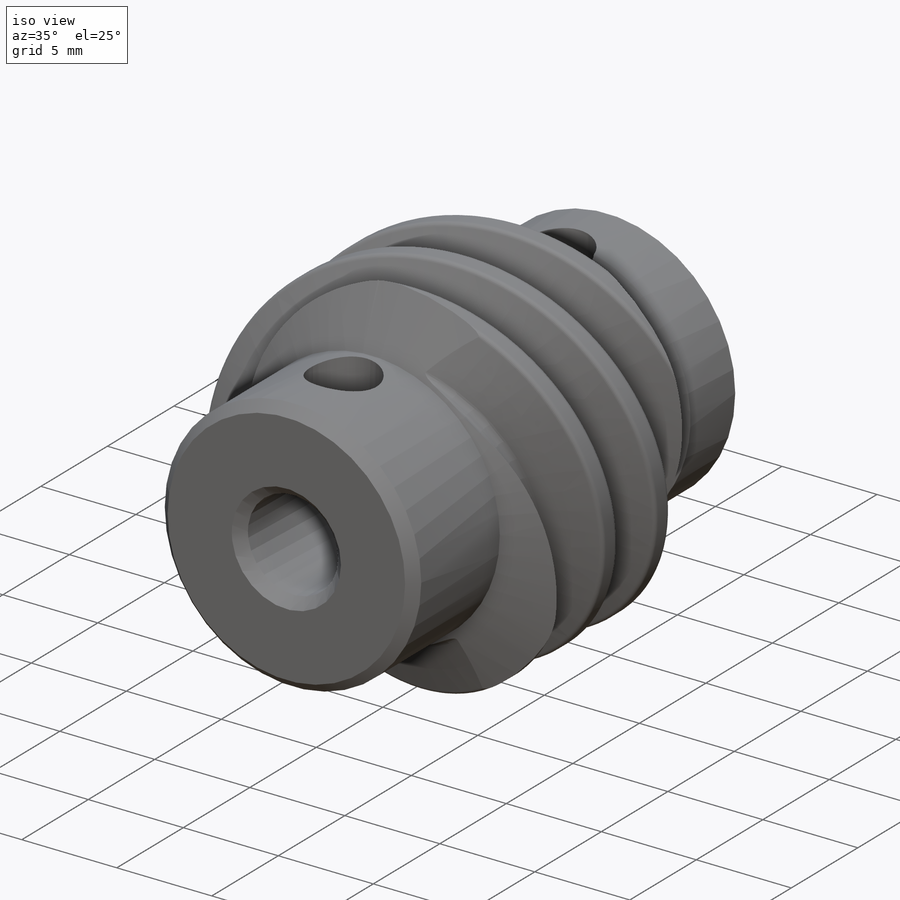
[diagram: iso view]
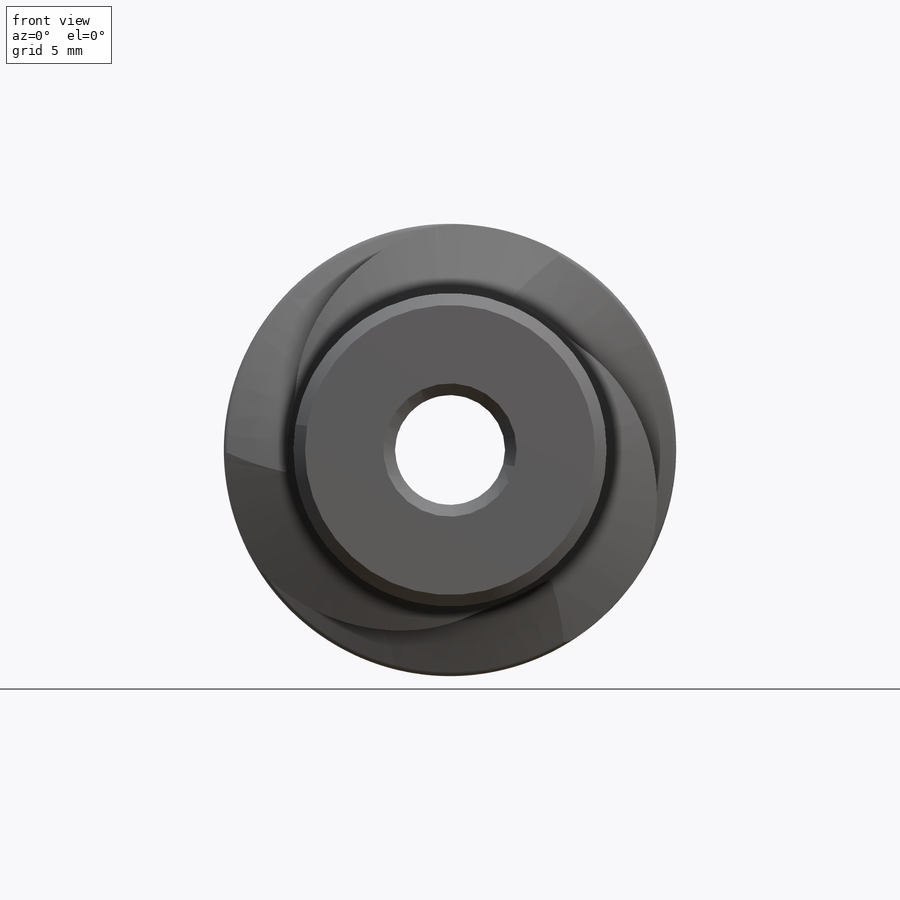
[diagram: front view]
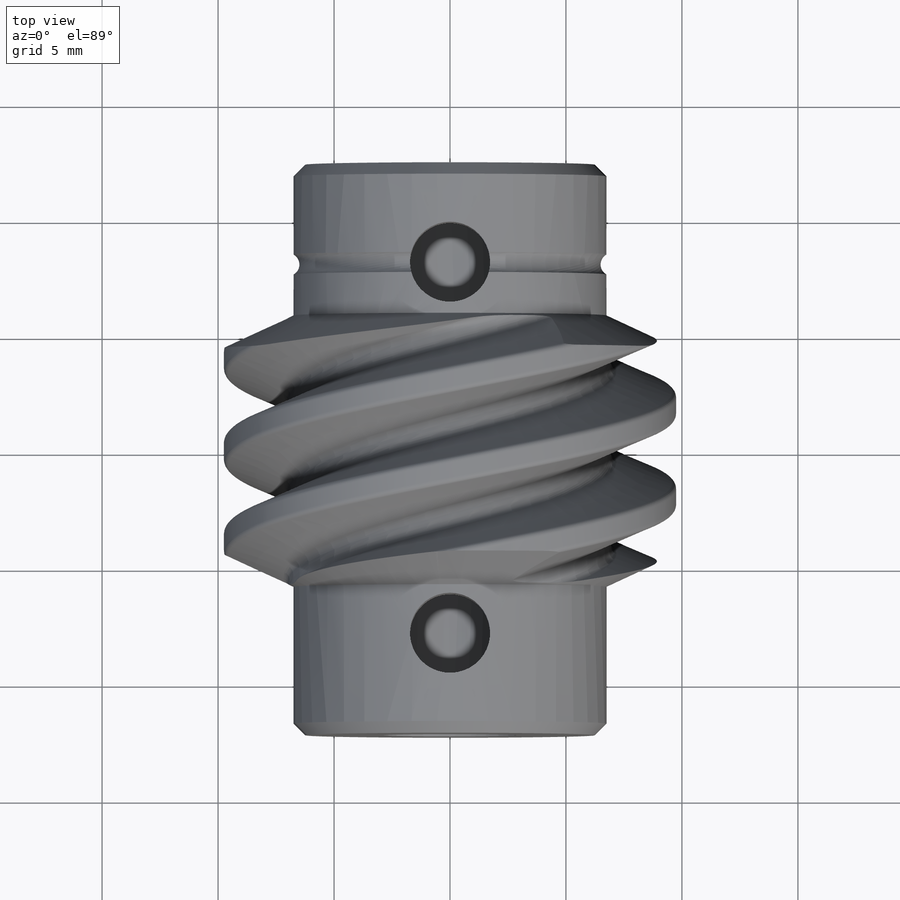
[diagram: top view]
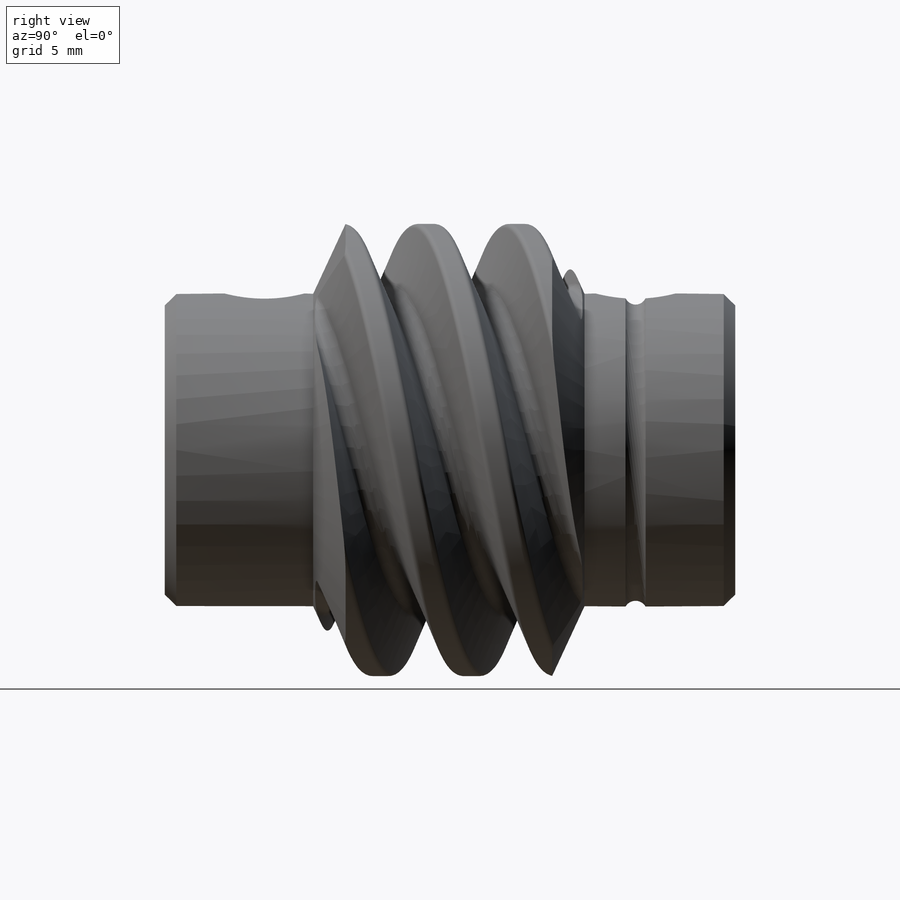
[diagram: right view]
SOLIDWORKS PART (.sldprt)
format: sldprt  version: not decoded by parser v0  size: 1,139,712 bytes
history: native  units: mm
features: sketch x15, plane x4, cut_revolve x3, extrude x3, chamfer x2, thread x2, material x1, revolve x1, helix x1, sweep x1, pattern_circular x1, hole x1, fillet x1 (+13 scaffold rows collapsed)
feature tree (49):
  scaffold x13  (default folders/planes/origin — collapsed)
  material  "Plain Carbon Steel"
  sketch  "Sketch1"
  sketch  "SketchRevolve4 to 1 with 16mm CC RV C"  dims[Side1=12.35mm ChamferX=0.4448mm ChamferY=0.4448mm OutsideDiameter=19.5mm WormLength=24.6mm]
  revolve  "4 to 1 with 16mm CC RV C"  Angle=360deg
  sketch  "Axis2"
  plane  "Plane1"
  plane  "HelixPlane4 to 1 with 16mm CC RV C"  Offset=23.561945mm
  sketch  "SketchHelix4 to 1 with 16mm CC RV C"  dims[PitchDiameter=17.0mm]
  helix  "GearHelix4 to 1 with 16mm CC RV C"  Pitch=47.12389mm
  sketch  "SketchTooth4 to 1 with 16mm CC RV C"  dims[c1.D2=0.375mm c1.D1=13.875mm c1.D3=~2.88121mm c2.D3=~40.961624deg c2.D4=3.125mm c2.D5=~9.746599mm c2.D6=~2.88121mm c3.D6=~20.480812deg c4.D6=~0.796298mm]
  sweep  "ToothCut4 to 1 with 16mm CC RV C"
  pattern_circular  "PatternThread4 to 1 with 16mm CC RV C"  Count=3 Angle=120deg
  sketch  "BoreRevolveSketch"  dims[BoreSide1=12.25mm TaperSide1=3.5mm Chamfer1X=0.5mm Chamfer1Y=0.5mm BoreSide2=12.25mm TaperSide2=3.5mm]
  cut_revolve  "BoreRevolveCut"  Angle=360deg
  sketch  "KeywaySketch"
  sketch  "AuxiliarySketch4 to 1 with 16mm CC RV C"  dims[PitchDiameter=17.0mm]
  sketch  "Sketch9"
  extrude  "Boss-Extrude1"  [1 undecoded]
  sketch  "Sketch8"  dims[c1.D1=~2.003658mm c2.D1=90.0deg c2.D2=11.25mm c2.D3=4.75mm c2.D4=6.02mm c2.D5=13.5mm c2.D6=20.0mm c2.D7=6.5mm c2.D8=3.5mm c3.D8=115.0deg]
  cut_revolve  "Cut-Revolve2"  Angle=360deg
  chamfer  "Chamfer1"  Distance=0.5mm Angle=45deg
  sketch  "Sketch12"  dims[D1=5.45mm]
  extrude  "Boss-Extrude2"  [1 undecoded]
  sketch  "Sketch13"  dims[c1.D1=4.22mm c1.D2=4.22mm c2.D1=0.0mm]
  extrude  "Boss-Extrude3"  [1 undecoded]
  hole  "#8-32 Tapped Hole1"  Diameter=3.4544mm Depth=9.919729mm
  sketch  "Sketch11"  dims[D1=4.3mm D2=4.3mm D3=16.0mm]
  sketch  "Sketch10"  dims[hole-wizard template sketch: 60 standard entries collapsed; hole parameters kept: c18.Thru Tap Drill Depth=~9.919729mm]
  thread  "Hole Thread1"  Diameter=4.1656mm  [1 undecoded]
  thread  "Hole Thread2"  Diameter=4.1656mm  [1 undecoded]
  fillet  "Fillet1"  Radius=0.25mm
  chamfer  "Chamfer2"  Distance=0.5mm Angle=45deg
  plane  "Plane2"
  plane  "Plane3"
  sketch  "Sketch14"  dims[D1=1.0mm D2=7.0mm D3=4.3mm]
  cut_revolve  "Cut-Revolve3"  Angle=360deg
decode coverage: 23 of 31 modeling features carry decoded parameters
note: ~ marks probable driven/reference dimensions
note: 5 parameter values undecoded
summary: no parameter record found for 3 features
note: suppression state not decoded; provenance and decode notes live in map.json
